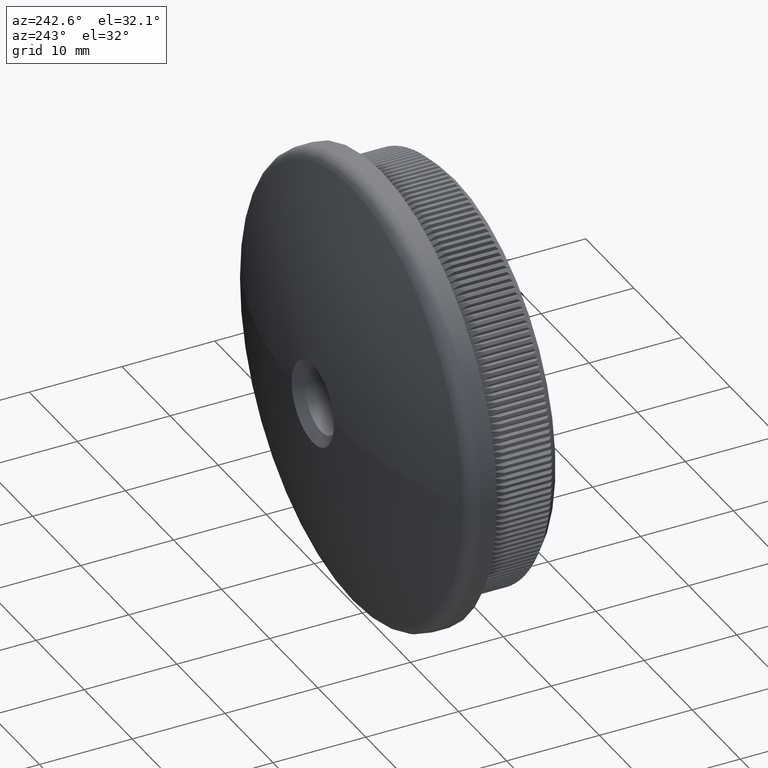
[diagram: clean part render]
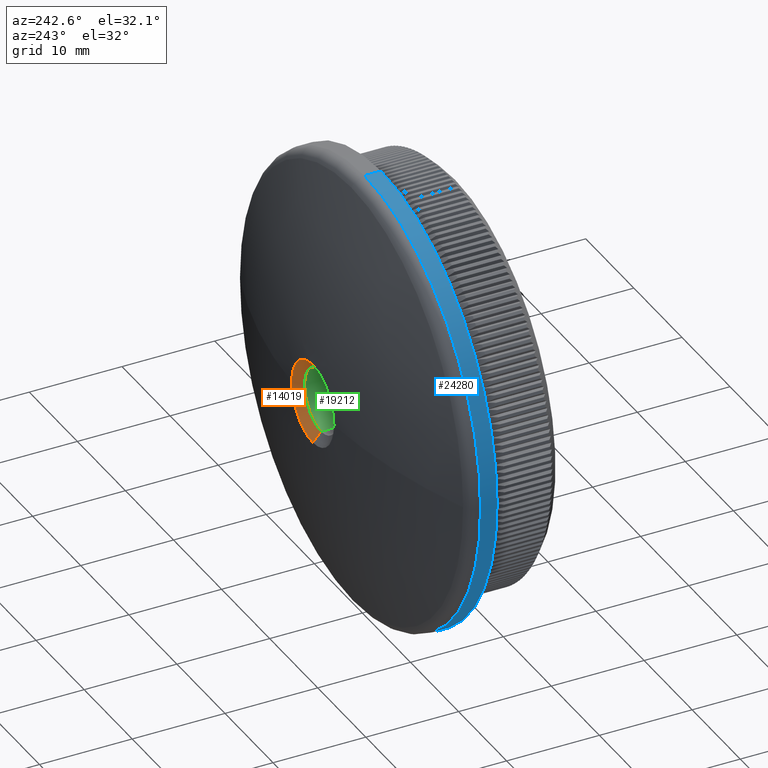
[diagram: same view with three faces highlighted in distinct colors, each labeled with its STEP entity id]
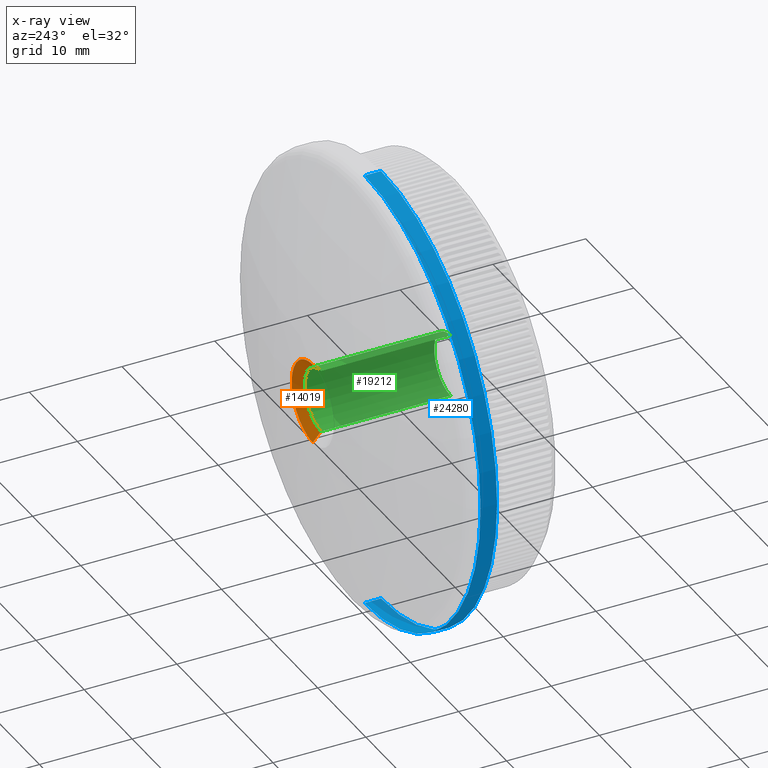
[diagram: x-ray of the same camera — body ghosted, the three highlighted faces saturated]
A machine part, auxiliary view with three faces highlighted in distinct colors.
The next image is the same camera in x-ray (body ghosted, the three faces saturated) — at least one of them is partly hidden behind the body in this view.
Their STEP definitions:

[orange] entity #14019 — the highlighted conical surface has half-angle 48.027 deg.
#417 = CONICAL_SURFACE ( 'NONE', #19978, 3.399999999999995500, 0.8382219000445301200 ) ;
#456 = DIRECTION ( 'NONE',  ( 9.104699426056070700E-017, 0.6687858199039512500, -0.7434551278291109400 ) ) ;
#562 = DIRECTION ( 'NONE',  ( 0.0000000000000000000, 0.0000000000000000000, -1.000000000000000000 ) ) ;
#1110 = EDGE_CURVE ( 'NONE', #30627, #10727, #32541, .T. ) ;
#1370 = VERTEX_POINT ( 'NONE', #22908 ) ;
#2190 = ORIENTED_EDGE ( 'NONE', *, *, #1110, .F. ) ;
#2532 = VECTOR ( 'NONE', #456, 1000.000000000000000 ) ;
#2765 = DIRECTION ( 'NONE',  ( 0.0000000000000000000, 1.000000000000000000, 0.0000000000000000000 ) ) ;
#3846 = EDGE_CURVE ( 'NONE', #17264, #1370, #25765, .T. ) ;
#4232 = DIRECTION ( 'NONE',  ( -0.0000000000000000000, -1.000000000000000000, -0.0000000000000000000 ) ) ;
#4668 = EDGE_CURVE ( 'NONE', #1370, #16217, #22195, .T. ) ;
#5134 = CARTESIAN_POINT ( 'NONE',  ( 4.163799117100995600E-016, 14.45906987097148100, -3.399999999999995500 ) ) ;
#6416 = DIRECTION ( 'NONE',  ( 0.0000000000000000000, 1.000000000000000000, 0.0000000000000000000 ) ) ;
#6515 = DIRECTION ( 'NONE',  ( 0.0000000000000000000, 0.0000000000000000000, 1.000000000000000000 ) ) ;
#7572 = DIRECTION ( 'NONE',  ( 0.0000000000000000000, 0.6687858199039512500, 0.7434551278291109400 ) ) ;
#7832 = EDGE_CURVE ( 'NONE', #30627, #16217, #10233, .T. ) ;
#8201 = VECTOR ( 'NONE', #7572, 1000.000000000000000 ) ;
#9473 = CARTESIAN_POINT ( 'NONE',  ( 0.0000000000000000000, 15.35014724972939800, 0.0000000000000000000 ) ) ;
#10233 = LINE ( 'NONE', #30291, #8201 ) ;
#10727 = VERTEX_POINT ( 'NONE', #16081 ) ;
#11417 = EDGE_CURVE ( 'NONE', #10727, #17264, #18060, .T. ) ;
#13489 = DIRECTION ( 'NONE',  ( -0.0000000000000000000, -1.000000000000000000, -0.0000000000000000000 ) ) ;
#14019 = ADVANCED_FACE ( 'NONE', ( #28575 ), #417, .F. ) ;
#14465 = CARTESIAN_POINT ( 'NONE',  ( 0.0000000000000000000, 14.45906987097148100, 0.0000000000000000000 ) ) ;
#14487 = DIRECTION ( 'NONE',  ( 0.0000000000000000000, 0.0000000000000000000, -1.000000000000000000 ) ) ;
#16081 = CARTESIAN_POINT ( 'NONE',  ( 0.0000000000000000000, 14.45906987097148100, -3.399999999999995500 ) ) ;
#16217 = VERTEX_POINT ( 'NONE', #31670 ) ;
#17264 = VERTEX_POINT ( 'NONE', #27696 ) ;
#18060 = LINE ( 'NONE', #5134, #2532 ) ;
#19978 = AXIS2_PLACEMENT_3D ( 'NONE', #14465, #6416, #6515 ) ;
#20699 = ORIENTED_EDGE ( 'NONE', *, *, #4668, .F. ) ;
#21214 = ORIENTED_EDGE ( 'NONE', *, *, #3846, .F. ) ;
#22072 = ORIENTED_EDGE ( 'NONE', *, *, #11417, .F. ) ;
#22195 = CIRCLE ( 'NONE', #29753, 4.390565330205774300 ) ;
#22791 = AXIS2_PLACEMENT_3D ( 'NONE', #9473, #4232, #14487 ) ;
#22908 = CARTESIAN_POINT ( 'NONE',  ( 4.390565330205774300, 15.35014724972939800, 0.0000000000000000000 ) ) ;
#25765 = CIRCLE ( 'NONE', #22791, 4.390565330205774300 ) ;
#27302 = CARTESIAN_POINT ( 'NONE',  ( 4.163799117100995600E-016, 14.45906987097148100, 3.399999999999995500 ) ) ;
#27696 = CARTESIAN_POINT ( 'NONE',  ( 5.376891778083837900E-016, 15.35014724972939800, -4.390565330205769900 ) ) ;
#28142 = DIRECTION ( 'NONE',  ( 0.0000000000000000000, 0.0000000000000000000, 1.000000000000000000 ) ) ;
#28575 = FACE_OUTER_BOUND ( 'NONE', #29816, .T. ) ;
#29282 = ORIENTED_EDGE ( 'NONE', *, *, #7832, .T. ) ;
#29753 = AXIS2_PLACEMENT_3D ( 'NONE', #30922, #13489, #562 ) ;
#29816 = EDGE_LOOP ( 'NONE', ( #22072, #2190, #29282, #20699, #21214 ) ) ;
#30291 = CARTESIAN_POINT ( 'NONE',  ( 0.0000000000000000000, 14.45906987097148100, 3.399999999999995500 ) ) ;
#30546 = AXIS2_PLACEMENT_3D ( 'NONE', #30882, #2765, #28142 ) ;
#30627 = VERTEX_POINT ( 'NONE', #27302 ) ;
#30882 = CARTESIAN_POINT ( 'NONE',  ( 0.0000000000000000000, 14.45906987097148100, 0.0000000000000000000 ) ) ;
#30922 = CARTESIAN_POINT ( 'NONE',  ( 0.0000000000000000000, 15.35014724972939800, 0.0000000000000000000 ) ) ;
#31670 = CARTESIAN_POINT ( 'NONE',  ( 0.0000000000000000000, 15.35014724972939800, 4.390565330205769900 ) ) ;
#32541 = CIRCLE ( 'NONE', #30546, 3.399999999999995500 ) ;

[blue] entity #24280 — the highlighted cylindrical surface (partial cylindrical patch) has radius 24.15 mm, axis along (-0, -1, -0).
#379 = DIRECTION ( 'NONE',  ( 0.0000000000000000000, 0.0000000000000000000, -1.000000000000000000 ) ) ;
#390 = VECTOR ( 'NONE', #8623, 1000.000000000000000 ) ;
#424 = EDGE_CURVE ( 'NONE', #6908, #23230, #24702, .T. ) ;
#1986 = LINE ( 'NONE', #18631, #390 ) ;
#2207 = EDGE_CURVE ( 'NONE', #14271, #6908, #1986, .T. ) ;
#2753 = DIRECTION ( 'NONE',  ( -0.0000000000000000000, -1.000000000000000000, -0.0000000000000000000 ) ) ;
#2957 = ORIENTED_EDGE ( 'NONE', *, *, #2207, .F. ) ;
#3051 = CARTESIAN_POINT ( 'NONE',  ( 0.0000000000000000000, 0.0000000000000000000, 0.0000000000000000000 ) ) ;
#3061 = EDGE_CURVE ( 'NONE', #28695, #23230, #3166, .T. ) ;
#3166 = LINE ( 'NONE', #30596, #20693 ) ;
#5082 = CARTESIAN_POINT ( 'NONE',  ( 2.957522019940858300E-015, 9.780020886796899400, 24.15000000000000200 ) ) ;
#5092 = DIRECTION ( 'NONE',  ( -0.0000000000000000000, -1.000000000000000000, -0.0000000000000000000 ) ) ;
#6908 = VERTEX_POINT ( 'NONE', #10144 ) ;
#7703 = EDGE_LOOP ( 'NONE', ( #2957, #25379, #19199, #23180 ) ) ;
#8563 = DIRECTION ( 'NONE',  ( -0.0000000000000000000, -1.000000000000000000, -0.0000000000000000000 ) ) ;
#8623 = DIRECTION ( 'NONE',  ( -0.0000000000000000000, -1.000000000000000000, -0.0000000000000000000 ) ) ;
#10144 = CARTESIAN_POINT ( 'NONE',  ( 2.957522019940858300E-015, 8.000000000000000000, 24.14999999999999900 ) ) ;
#13179 = DIRECTION ( 'NONE',  ( -0.0000000000000000000, -1.000000000000000000, -0.0000000000000000000 ) ) ;
#14006 = CARTESIAN_POINT ( 'NONE',  ( 0.0000000000000000000, 8.000000000000000000, -24.14999999999999900 ) ) ;
#14271 = VERTEX_POINT ( 'NONE', #5082 ) ;
#17999 = CARTESIAN_POINT ( 'NONE',  ( 0.0000000000000000000, 9.780020886796899400, 0.0000000000000000000 ) ) ;
#18347 = CYLINDRICAL_SURFACE ( 'NONE', #30016, 24.15000000000000200 ) ;
#18575 = AXIS2_PLACEMENT_3D ( 'NONE', #17999, #2753, #25704 ) ;
#18631 = CARTESIAN_POINT ( 'NONE',  ( 2.957522019940858300E-015, 0.0000000000000000000, 24.15000000000000200 ) ) ;
#19199 = ORIENTED_EDGE ( 'NONE', *, *, #3061, .T. ) ;
#20693 = VECTOR ( 'NONE', #8563, 1000.000000000000000 ) ;
#22275 = EDGE_CURVE ( 'NONE', #14271, #28695, #23571, .T. ) ;
#23180 = ORIENTED_EDGE ( 'NONE', *, *, #424, .F. ) ;
#23230 = VERTEX_POINT ( 'NONE', #14006 ) ;
#23571 = CIRCLE ( 'NONE', #18575, 24.15000000000000200 ) ;
#24280 = ADVANCED_FACE ( 'NONE', ( #29021 ), #18347, .T. ) ;
#24702 = CIRCLE ( 'NONE', #26527, 24.14999999999999900 ) ;
#25379 = ORIENTED_EDGE ( 'NONE', *, *, #22275, .T. ) ;
#25704 = DIRECTION ( 'NONE',  ( 0.0000000000000000000, 0.0000000000000000000, -1.000000000000000000 ) ) ;
#26527 = AXIS2_PLACEMENT_3D ( 'NONE', #30024, #5092, #30476 ) ;
#28695 = VERTEX_POINT ( 'NONE', #32408 ) ;
#29021 = FACE_OUTER_BOUND ( 'NONE', #7703, .T. ) ;
#30016 = AXIS2_PLACEMENT_3D ( 'NONE', #3051, #13179, #379 ) ;
#30024 = CARTESIAN_POINT ( 'NONE',  ( 0.0000000000000000000, 8.000000000000000000, 0.0000000000000000000 ) ) ;
#30476 = DIRECTION ( 'NONE',  ( 0.0000000000000000000, 0.0000000000000000000, -1.000000000000000000 ) ) ;
#30596 = CARTESIAN_POINT ( 'NONE',  ( 0.0000000000000000000, 0.0000000000000000000, -24.15000000000000200 ) ) ;
#32408 = CARTESIAN_POINT ( 'NONE',  ( 0.0000000000000000000, 9.780020886796899400, -24.15000000000000200 ) ) ;

[green] entity #19212 — the highlighted cylindrical surface (edge-blend (fillet) strip) has radius 3.4 mm, axis along (-0, -1, -0).
#27 = CARTESIAN_POINT ( 'NONE',  ( 4.163799117100995600E-016, 0.0000000000000000000, 3.399999999999995500 ) ) ;
#885 = ORIENTED_EDGE ( 'NONE', *, *, #25462, .T. ) ;
#1110 = EDGE_CURVE ( 'NONE', #30627, #10727, #32541, .T. ) ;
#2481 = ORIENTED_EDGE ( 'NONE', *, *, #3163, .F. ) ;
#2765 = DIRECTION ( 'NONE',  ( 0.0000000000000000000, 1.000000000000000000, 0.0000000000000000000 ) ) ;
#3163 = EDGE_CURVE ( 'NONE', #30627, #23133, #6333, .T. ) ;
#3463 = CIRCLE ( 'NONE', #17556, 3.399999999999995500 ) ;
#4656 = CARTESIAN_POINT ( 'NONE',  ( 0.0000000000000000000, 0.4999999999999891800, 0.0000000000000000000 ) ) ;
#5427 = DIRECTION ( 'NONE',  ( -0.0000000000000000000, -1.000000000000000000, -0.0000000000000000000 ) ) ;
#6333 = LINE ( 'NONE', #27, #7941 ) ;
#6777 = VECTOR ( 'NONE', #14960, 1000.000000000000000 ) ;
#7436 = EDGE_CURVE ( 'NONE', #7745, #23133, #3463, .T. ) ;
#7745 = VERTEX_POINT ( 'NONE', #12858 ) ;
#7941 = VECTOR ( 'NONE', #5427, 1000.000000000000000 ) ;
#8213 = FACE_OUTER_BOUND ( 'NONE', #23912, .T. ) ;
#9929 = CARTESIAN_POINT ( 'NONE',  ( 4.163799117100995600E-016, 0.4999999999999891800, 3.399999999999995500 ) ) ;
#10264 = DIRECTION ( 'NONE',  ( -0.0000000000000000000, -1.000000000000000000, -0.0000000000000000000 ) ) ;
#10727 = VERTEX_POINT ( 'NONE', #16081 ) ;
#12858 = CARTESIAN_POINT ( 'NONE',  ( 0.0000000000000000000, 0.4999999999999891800, -3.399999999999995500 ) ) ;
#14960 = DIRECTION ( 'NONE',  ( -0.0000000000000000000, -1.000000000000000000, -0.0000000000000000000 ) ) ;
#15292 = CARTESIAN_POINT ( 'NONE',  ( 0.0000000000000000000, 0.0000000000000000000, 0.0000000000000000000 ) ) ;
#16081 = CARTESIAN_POINT ( 'NONE',  ( 0.0000000000000000000, 14.45906987097148100, -3.399999999999995500 ) ) ;
#17556 = AXIS2_PLACEMENT_3D ( 'NONE', #4656, #22648, #30019 ) ;
#19212 = ADVANCED_FACE ( 'NONE', ( #8213 ), #24485, .F. ) ;
#21924 = ORIENTED_EDGE ( 'NONE', *, *, #1110, .T. ) ;
#22648 = DIRECTION ( 'NONE',  ( 0.0000000000000000000, -1.000000000000000000, 0.0000000000000000000 ) ) ;
#23133 = VERTEX_POINT ( 'NONE', #9929 ) ;
#23472 = LINE ( 'NONE', #27520, #6777 ) ;
#23912 = EDGE_LOOP ( 'NONE', ( #2481, #21924, #885, #28150 ) ) ;
#24485 = CYLINDRICAL_SURFACE ( 'NONE', #25492, 3.399999999999995500 ) ;
#24961 = DIRECTION ( 'NONE',  ( 0.0000000000000000000, 0.0000000000000000000, -1.000000000000000000 ) ) ;
#25462 = EDGE_CURVE ( 'NONE', #10727, #7745, #23472, .T. ) ;
#25492 = AXIS2_PLACEMENT_3D ( 'NONE', #15292, #10264, #24961 ) ;
#27302 = CARTESIAN_POINT ( 'NONE',  ( 4.163799117100995600E-016, 14.45906987097148100, 3.399999999999995500 ) ) ;
#27520 = CARTESIAN_POINT ( 'NONE',  ( 0.0000000000000000000, 0.0000000000000000000, -3.399999999999995500 ) ) ;
#28142 = DIRECTION ( 'NONE',  ( 0.0000000000000000000, 0.0000000000000000000, 1.000000000000000000 ) ) ;
#28150 = ORIENTED_EDGE ( 'NONE', *, *, #7436, .T. ) ;
#30019 = DIRECTION ( 'NONE',  ( 0.0000000000000000000, 0.0000000000000000000, -1.000000000000000000 ) ) ;
#30546 = AXIS2_PLACEMENT_3D ( 'NONE', #30882, #2765, #28142 ) ;
#30627 = VERTEX_POINT ( 'NONE', #27302 ) ;
#30882 = CARTESIAN_POINT ( 'NONE',  ( 0.0000000000000000000, 14.45906987097148100, 0.0000000000000000000 ) ) ;
#32541 = CIRCLE ( 'NONE', #30546, 3.399999999999995500 ) ;